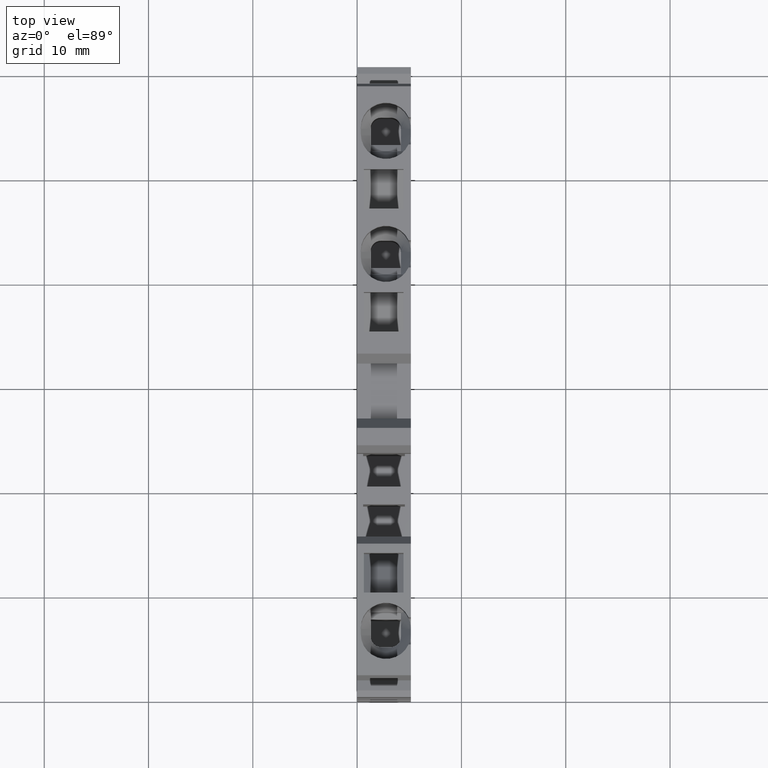
[diagram: clean part render]
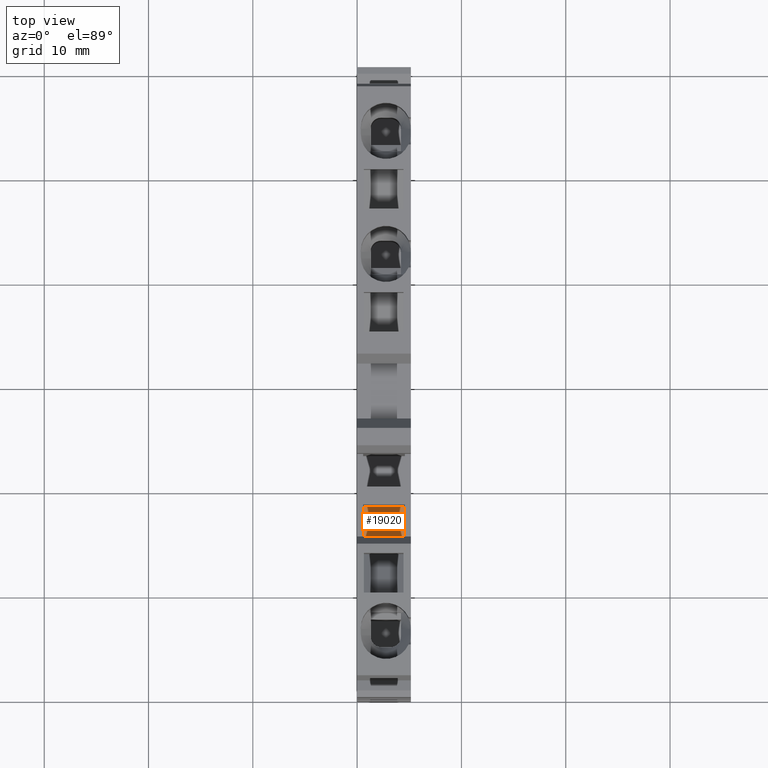
[diagram: same view with one face highlighted and labeled with its STEP entity id]
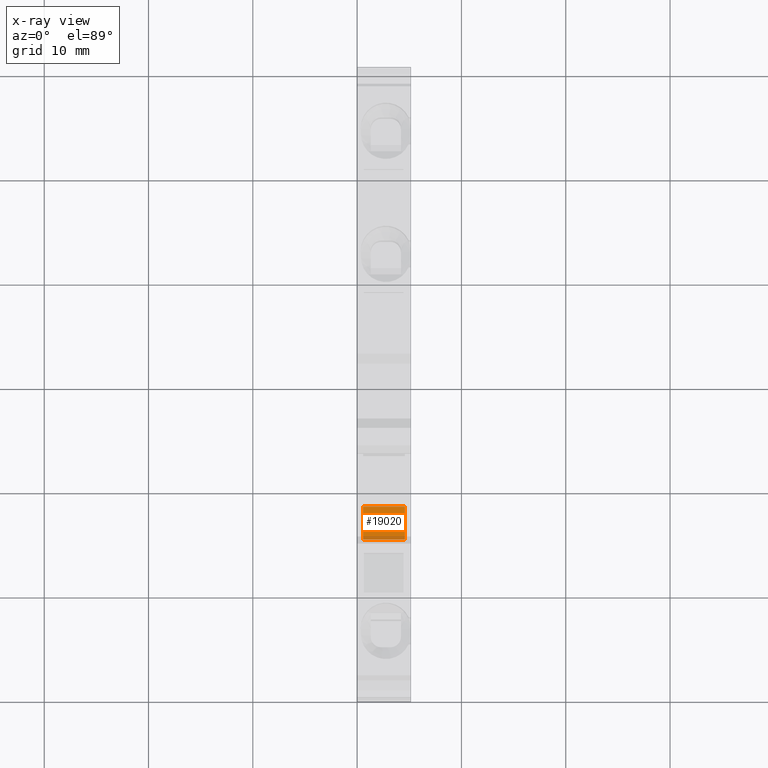
[diagram: x-ray of the same camera — body ghosted, the highlighted face saturated]
A machine part, top view. The second image highlights one B-rep face of the part: STEP entity #19020.
The next image is the same camera in x-ray: the body ghosted, the highlighted face saturated — about 9% of this face is hidden behind the body in this view.
In plain terms, the highlighted planar face has unit normal (-0, 0, 1).
Its self-contained STEP definition (entity closure, byte-faithful):
#18360=CARTESIAN_POINT('',(-7.06783277832493,-27.3499999999999,
53.09499999999));
#18370=VERTEX_POINT('',#18360);
#18400=CARTESIAN_POINT('',(-32.930534970363,-27.3499999999996,
53.0949999999794));
#18410=DIRECTION('',(-1.,1.02418074021671E-14,-4.0985636225261E-13));
#18420=VECTOR('',#18410,1.);
#18430=LINE('',#18400,#18420);
#18440=CARTESIAN_POINT('',(-3.91783277830537,-27.3499999999999,
53.0949999999913));
#18450=VERTEX_POINT('',#18440);
#18460=EDGE_CURVE('',#18450,#18370,#18430,.T.);
#18720=CARTESIAN_POINT('',(6.35958549360121,-27.35,51.7120812403526));
#18730=DIRECTION('',(1.02279296143574E-14,1.,1.46035561423556E-15));
#18740=DIRECTION('',(-1.,1.02279296143593E-14,-1.25291079088555E-12));
#18750=AXIS2_PLACEMENT_3D('',#18720,#18730,#18740);
#18760=PLANE('',#18750);
#18770=CARTESIAN_POINT('',(-32.9305349703614,-27.3499999999996,
49.0949999999794));
#18780=DIRECTION('',(-1.,1.02418074021671E-14,-4.0985636225261E-13));
#18790=VECTOR('',#18780,1.);
#18800=LINE('',#18770,#18790);
#18810=CARTESIAN_POINT('',(-3.91783277830374,-27.3499999999999,
49.0949999999913));
#18820=VERTEX_POINT('',#18810);
#18830=CARTESIAN_POINT('',(-7.06783277832328,-27.3499999999999,
49.09499999999));
#18840=VERTEX_POINT('',#18830);
#18850=EDGE_CURVE('',#18820,#18840,#18800,.T.);
#18860=ORIENTED_EDGE('',*,*,#18850,.T.);
#18870=CARTESIAN_POINT('',(-3.91783277830561,-27.3499999999999,
53.6699999999913));
#18880=DIRECTION('',(-4.0985636225261E-13,-1.46035561423138E-15,1.));
#18890=VECTOR('',#18880,1.);
#18900=LINE('',#18870,#18890);
#18910=EDGE_CURVE('',#18820,#18450,#18900,.T.);
#18920=ORIENTED_EDGE('',*,*,#18910,.F.);
#18930=ORIENTED_EDGE('',*,*,#18460,.F.);
#18940=CARTESIAN_POINT('',(-7.06783277832517,-27.3499999999999,
53.66999999999));
#18950=DIRECTION('',(-4.0985636225261E-13,-1.46035561423137E-15,1.));
#18960=VECTOR('',#18950,1.);
#18970=LINE('',#18940,#18960);
#18980=EDGE_CURVE('',#18840,#18370,#18970,.T.);
#18990=ORIENTED_EDGE('',*,*,#18980,.T.);
#19000=EDGE_LOOP('',(#18990,#18930,#18920,#18860));
#19010=FACE_OUTER_BOUND('',#19000,.T.);
#19020=ADVANCED_FACE('',(#19010),#18760,.T.);